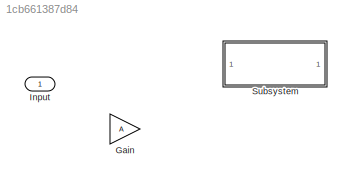
MODEL slx_1cb661387d84
KIND model
CONFIG AbsTol = auto
CONFIG EnableMultiTasking = off
CONFIG FixedStep = auto
CONFIG MaxStep = auto
CONFIG MinStep = auto
CONFIG RelTol = 1e-3
CONFIG SampleTimeConstraint = Unconstrained
CONFIG SolverName = VariableStepAuto
CONFIG StartTime = 0.0
CONFIG StopTime = 10.0
BLOCK [Gain] Gain
  Gain = A
BLOCK [Inport] Input
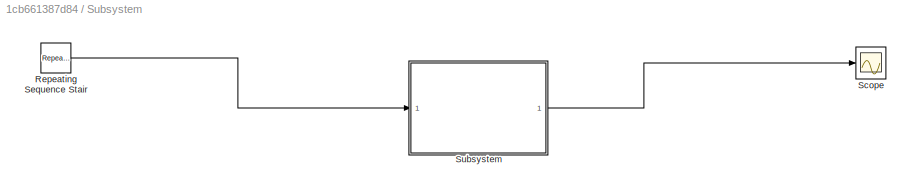
BLOCK [SubSystem] Subsystem
  Ports = []
  RequestExecContextInheritance = off
BLOCK [Reference] Subsystem/Repeating Sequence Stair  REF=simulink/Sources/Repeating
Sequence
Stair
  Ports = [0, 1]
  SourceBlock = simulink/Sources/Repeating\nSequence\nStair
  SourceProductBaseCode = SL
  SourceType = Repeating Sequence Stair
BLOCK [Scope] Subsystem/Scope
  Floating = off
  NumInputPorts = 1
  Ports = [1]
  ScopeSpecificationString = Simulink.scopes.TimeScopeBlockCfg('CurrentConfiguration', extmgr.ConfigurationSet(extmgr.Configuration('Core','General UI',true),extmgr.Configuration('Core','Source UI',true),extmgr.Configuration('Sources','WiredSimulink',true),extmgr.Configuration('Visuals','Time Domain',true,'SerializedDisplays',{struct('MinYLimReal','-0.70771','MaxYLimReal','0.72219','YLabelReal','','MinYLimMag','0.00000','MaxY...<+1355ch>
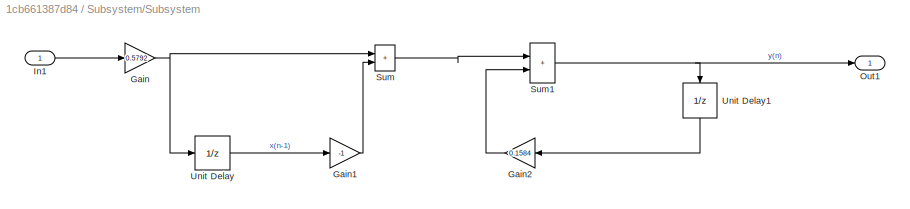
BLOCK [SubSystem] Subsystem/Subsystem
  Ports = [1, 1]
  RequestExecContextInheritance = off
BLOCK [Gain] Subsystem/Subsystem/Gain
  Gain = 0.5792
BLOCK [Gain] Subsystem/Subsystem/Gain1
  Gain = -1
BLOCK [Gain] Subsystem/Subsystem/Gain2
  Gain = 0.1584
  NameLocation = top
BLOCK [Inport] Subsystem/Subsystem/In1
BLOCK [Outport] Subsystem/Subsystem/Out1
BLOCK [Sum] Subsystem/Subsystem/Sum
  IconShape = rectangular
  Inputs = |++
  Ports = [2, 1]
BLOCK [Sum] Subsystem/Subsystem/Sum1
  IconShape = rectangular
  Inputs = |++
  Ports = [2, 1]
BLOCK [UnitDelay] Subsystem/Subsystem/Unit Delay
  HasFrameUpgradeWarning = on
  SampleTime = -1
BLOCK [UnitDelay] Subsystem/Subsystem/Unit Delay1
  HasFrameUpgradeWarning = on
  NameLocation = left
  SampleTime = -1
LINE Subsystem/Repeating Sequence Stair:1 -> Subsystem/Subsystem:1
LINE Subsystem/Subsystem/Gain1:1 -> Subsystem/Subsystem/Sum:2
LINE Subsystem/Subsystem/Gain2:1 -> Subsystem/Subsystem/Sum1:2
NET Subsystem/Subsystem/Gain:1 -> Subsystem/Subsystem/Sum:1, Subsystem/Subsystem/Unit Delay:1
LINE Subsystem/Subsystem/In1:1 -> Subsystem/Subsystem/Gain:1
NET Subsystem/Subsystem/Sum1:1 -> Subsystem/Subsystem/Out1:1, Subsystem/Subsystem/Unit Delay1:1
LINE Subsystem/Subsystem/Sum:1 -> Subsystem/Subsystem/Sum1:1
LINE Subsystem/Subsystem/Unit Delay1:1 -> Subsystem/Subsystem/Gain2:1
LINE Subsystem/Subsystem/Unit Delay:1 -> Subsystem/Subsystem/Gain1:1
LINE Subsystem/Subsystem:1 -> Subsystem/Scope:1
note: NET lines group one-source signal fan-out (src -> all destinations, sorted); 1:1 wires keep LINE
